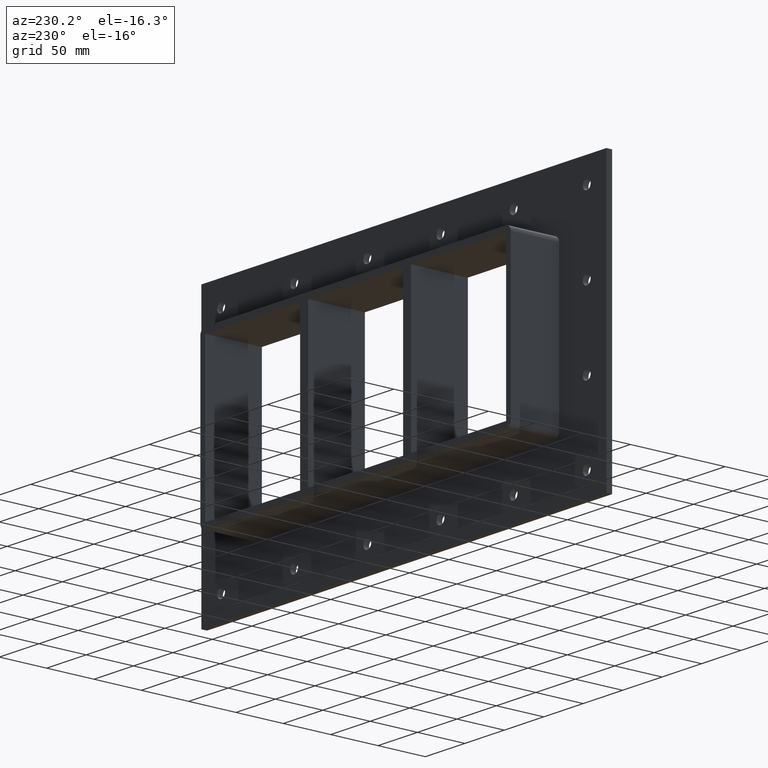
[diagram: clean part render]
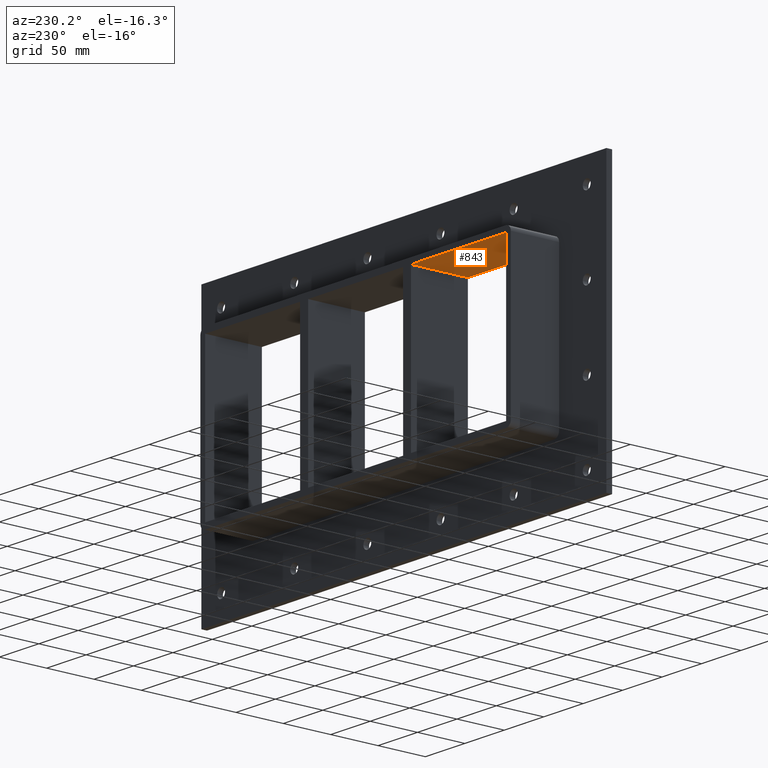
[diagram: same view with one face highlighted and labeled with its STEP entity id]
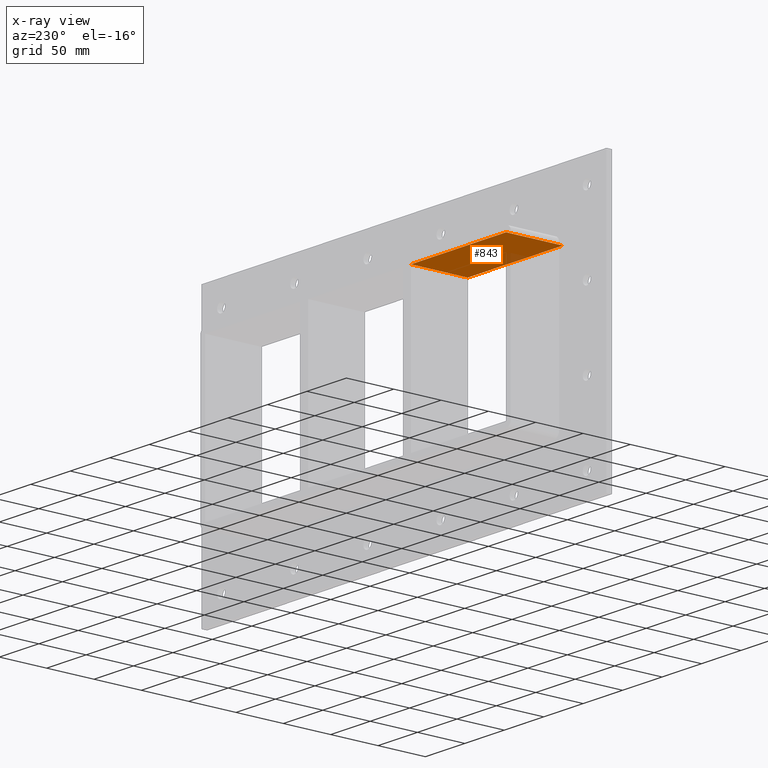
[diagram: x-ray of the same camera — body ghosted, the highlighted face saturated]
A machine part, auxiliary view. The second image highlights one B-rep face of the part: STEP entity #843.
The next image is the same camera in x-ray: the body ghosted, the highlighted face saturated — about 5% of this face is hidden behind the body in this view.
In plain terms, the highlighted planar face has unit normal (0, 0, 1).
Its self-contained STEP definition (entity closure, byte-faithful):
#727=CARTESIAN_POINT('',(-70.25000000000145,-3.0,79.750000000000014));
#728=VERTEX_POINT('',#727);
#735=CARTESIAN_POINT('',(-70.25000000000145,57.0,79.750000000000014));
#736=VERTEX_POINT('',#735);
#737=CARTESIAN_POINT('',(-70.25000000000145,57.000000000000007,79.750000000000014));
#738=DIRECTION('',(0.0,-1.0,0.0));
#739=VECTOR('',#738,60.000000000000007);
#740=LINE('',#737,#739);
#741=EDGE_CURVE('',#736,#728,#740,.T.);
#813=CARTESIAN_POINT('',(-190.75000000000006,0.0,79.750000000000014));
#814=DIRECTION('',(0.0,0.0,1.0));
#815=DIRECTION('',(1.0,0.0,0.0));
#816=AXIS2_PLACEMENT_3D('',#813,#814,#815);
#817=PLANE('',#816);
#818=ORIENTED_EDGE('',*,*,#741,.T.);
#819=CARTESIAN_POINT('',(-190.75000000000011,-3.0,79.750000000000014));
#820=VERTEX_POINT('',#819);
#821=CARTESIAN_POINT('',(-190.75000000000011,-3.0,79.750000000000014));
#822=DIRECTION('',(1.0,0.0,0.0));
#823=VECTOR('',#822,120.49999999999868);
#824=LINE('',#821,#823);
#825=EDGE_CURVE('',#820,#728,#824,.T.);
#826=ORIENTED_EDGE('',*,*,#825,.F.);
#827=CARTESIAN_POINT('',(-190.75000000000011,57.0,79.750000000000014));
#828=VERTEX_POINT('',#827);
#829=CARTESIAN_POINT('',(-190.75000000000006,-3.0,79.750000000000014));
#830=DIRECTION('',(0.0,1.0,0.0));
#831=VECTOR('',#830,60.0);
#832=LINE('',#829,#831);
#833=EDGE_CURVE('',#820,#828,#832,.T.);
#834=ORIENTED_EDGE('',*,*,#833,.T.);
#835=CARTESIAN_POINT('',(-70.250000000001435,57.0,79.750000000000014));
#836=DIRECTION('',(-1.0,0.0,0.0));
#837=VECTOR('',#836,120.49999999999868);
#838=LINE('',#835,#837);
#839=EDGE_CURVE('',#736,#828,#838,.T.);
#840=ORIENTED_EDGE('',*,*,#839,.F.);
#841=EDGE_LOOP('',(#818,#826,#834,#840));
#842=FACE_OUTER_BOUND('',#841,.T.);
#843=ADVANCED_FACE('',(#842),#817,.F.);